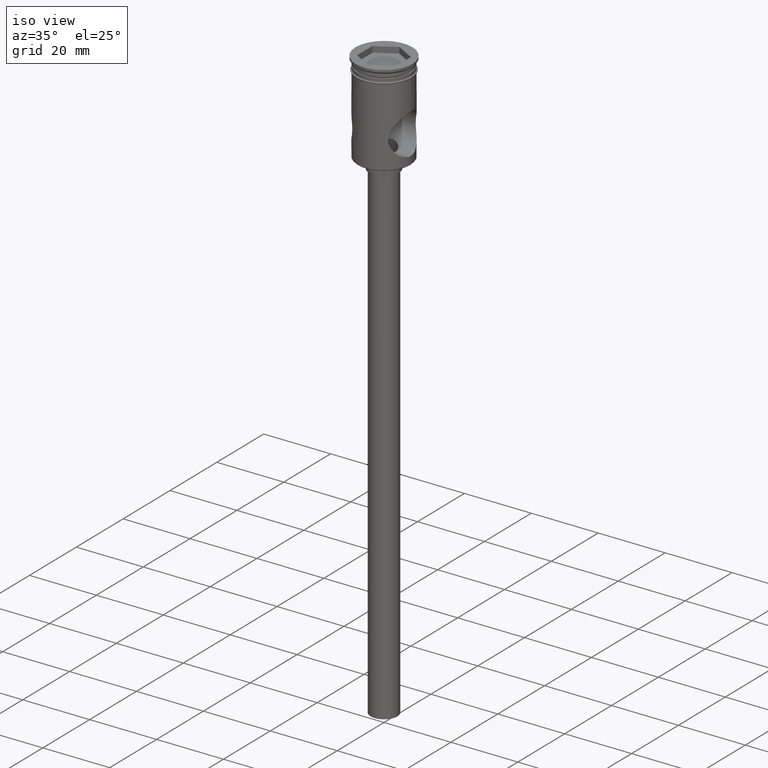
[diagram: clean part render]
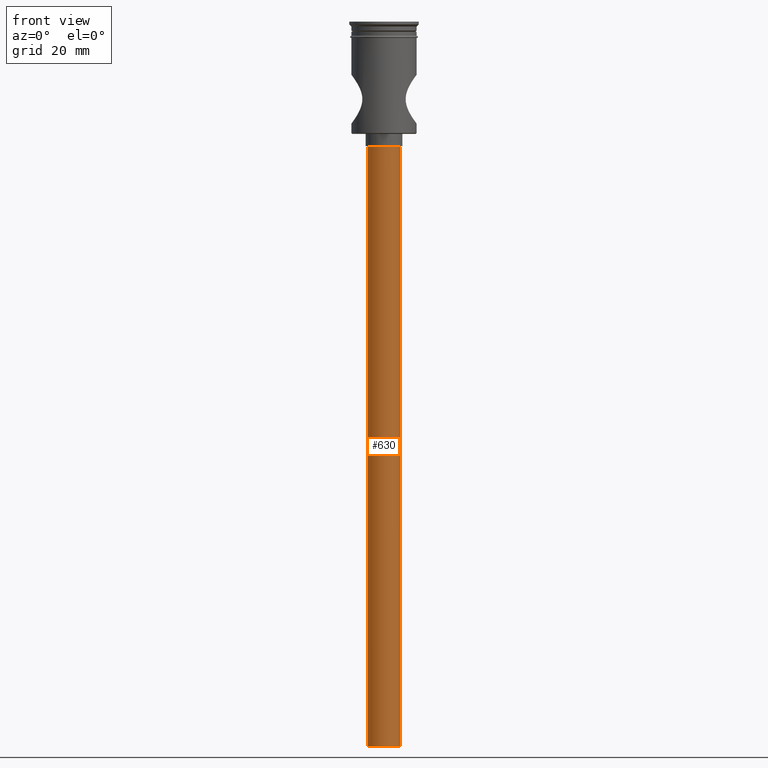
[diagram: tour spotlight — one face highlighted and labeled with its STEP entity id]
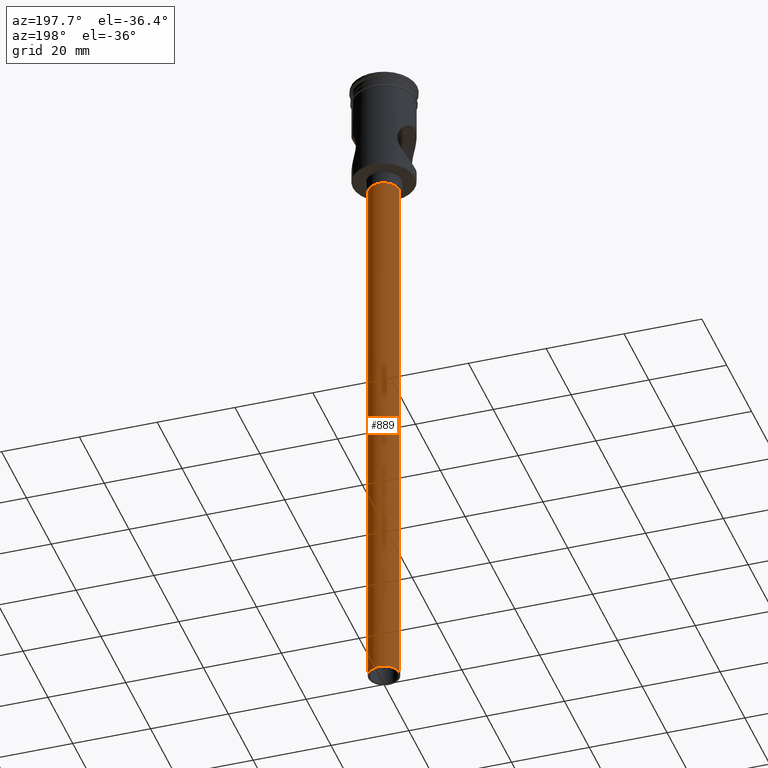
[diagram: tour spotlight — one face highlighted and labeled with its STEP entity id]
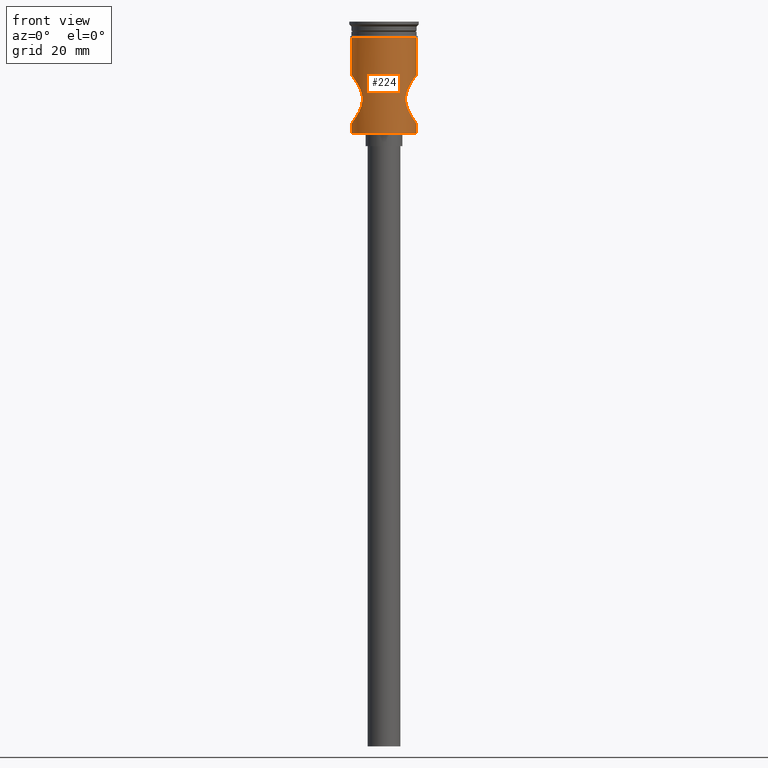
[diagram: tour spotlight — one face highlighted and labeled with its STEP entity id]
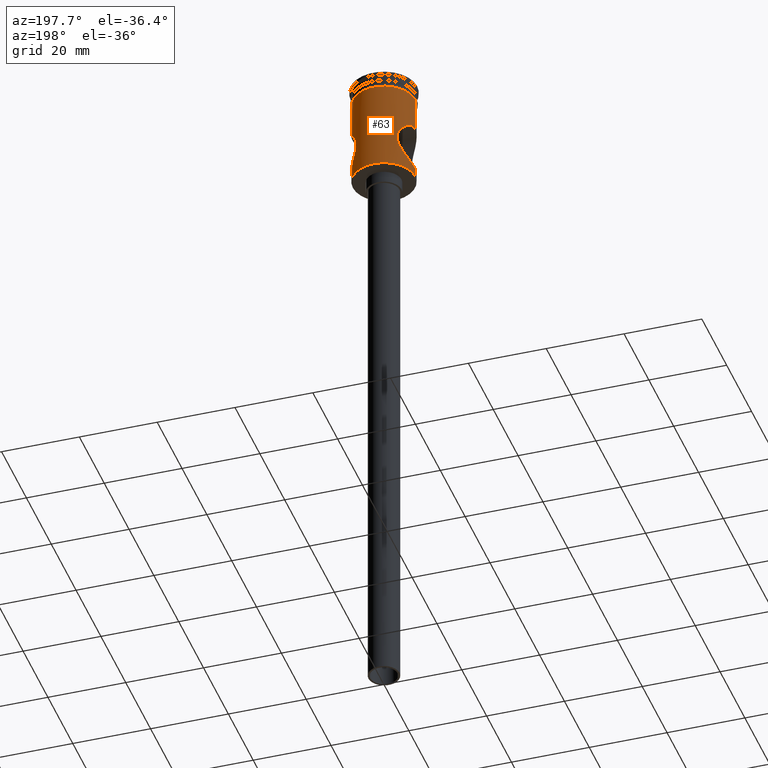
[diagram: tour spotlight — one face highlighted and labeled with its STEP entity id]
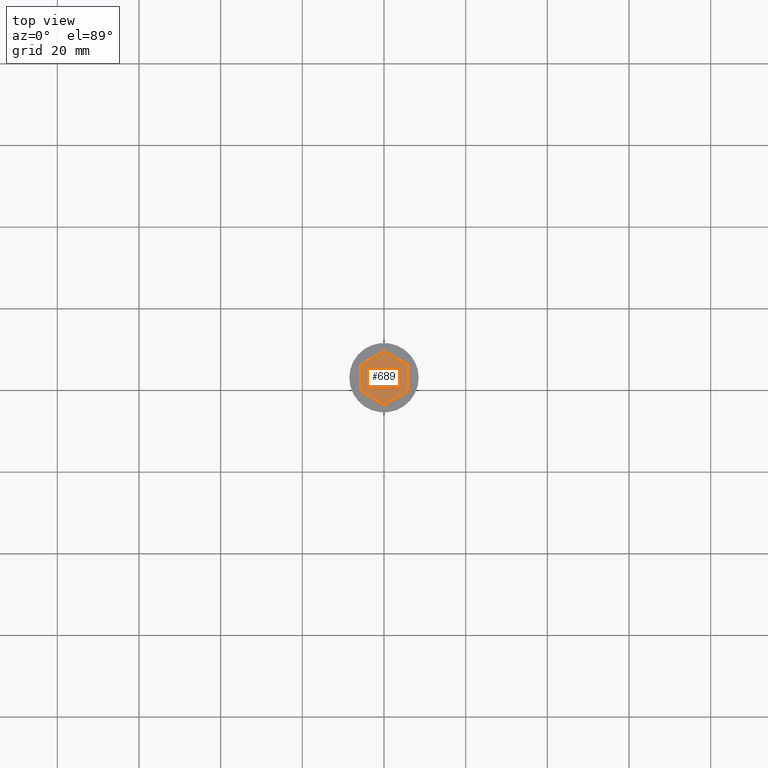
[diagram: tour spotlight — one face highlighted and labeled with its STEP entity id]
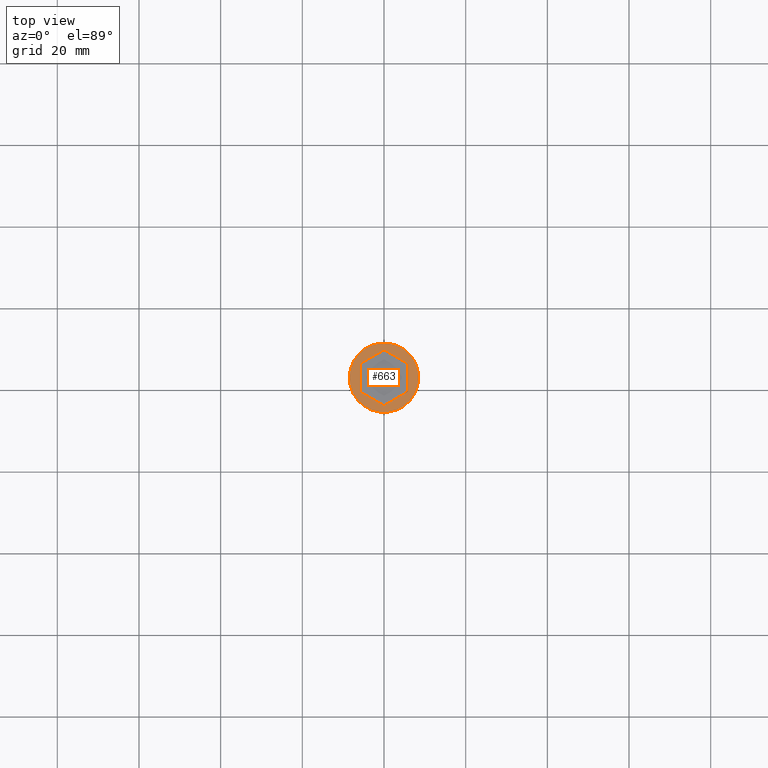
[diagram: tour spotlight — one face highlighted and labeled with its STEP entity id]
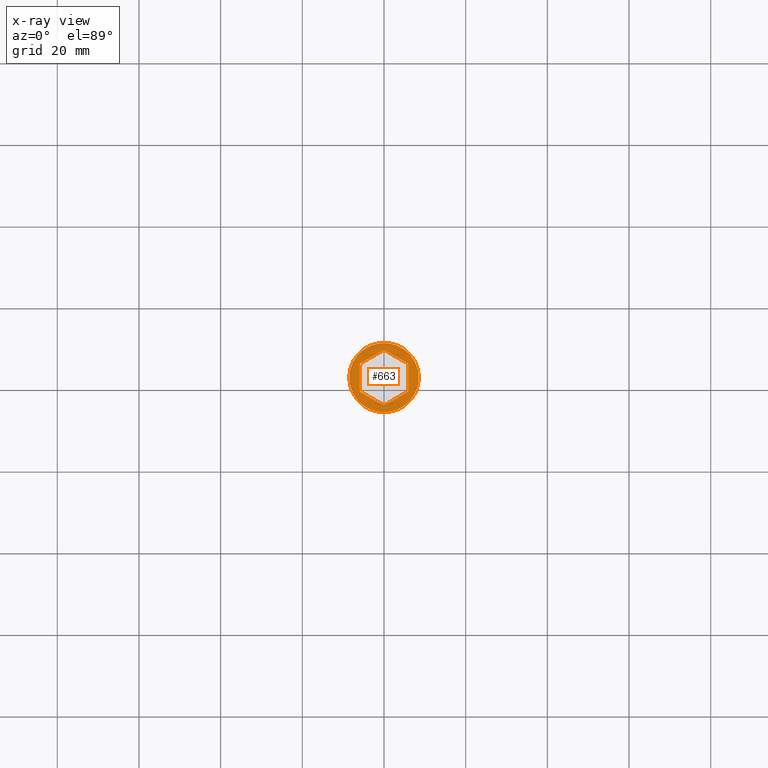
[diagram: x-ray of the same camera — body ghosted, this tour face saturated]
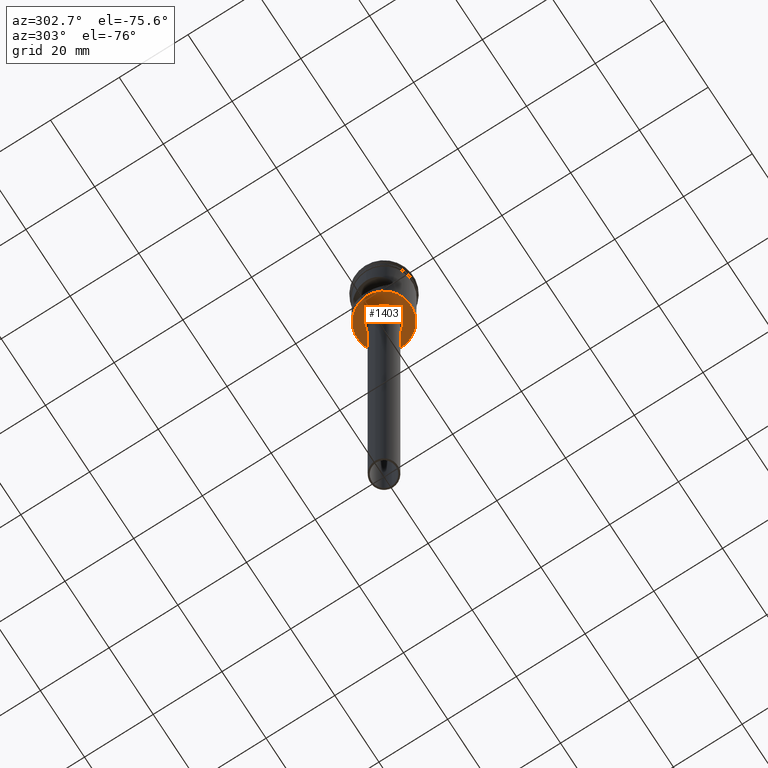
[diagram: tour spotlight — one face highlighted and labeled with its STEP entity id]
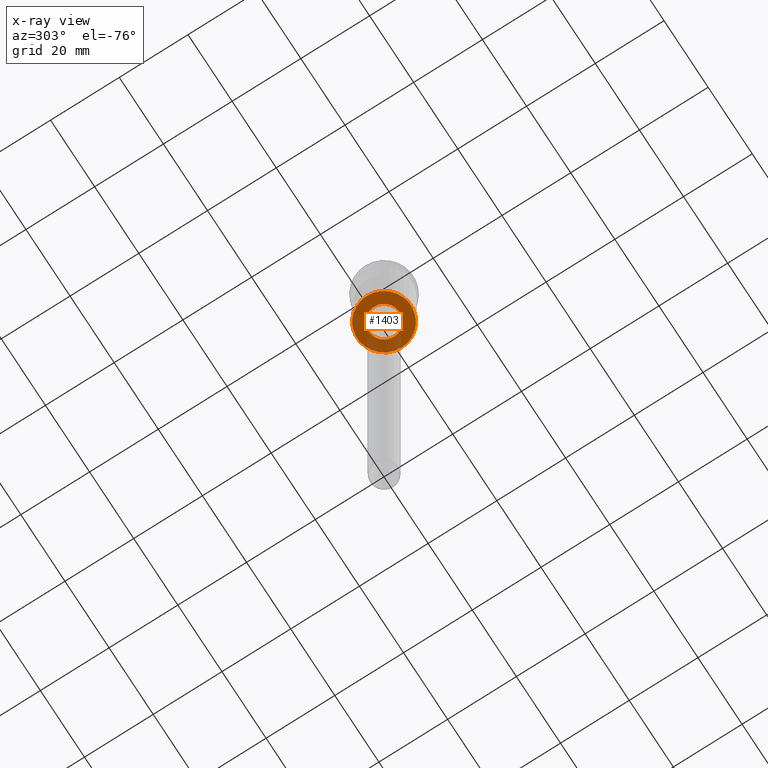
[diagram: x-ray of the same camera — body ghosted, this tour face saturated]
A machine part: a face-by-face anatomy tour. The part has 44 B-rep faces; the first image is the clean iso view, then the 7 largest visible faces are spotlighted one at a time (largest first), each with its STEP entity span.

Face 1 — front view, entity #630. In plain terms, the highlighted cylindrical surface (edge-blend (fillet) strip) has radius 4 mm, axis along (-0, -0, 1).
Definition (entity closure, byte-faithful):
#17 = EDGE_CURVE ( 'NONE', #335, #785, #364, .T. ) ;
#89 = CARTESIAN_POINT ( 'NONE',  ( -4.000000000000000000, 4.898587196589412829E-16, -30.50000000000000000 ) ) ;
#90 = EDGE_LOOP ( 'NONE', ( #229, #316, #837, #1395 ) ) ;
#132 = CIRCLE ( 'NONE', #334, 4.000000000000000000 ) ;
#162 = VERTEX_POINT ( 'NONE', #1072 ) ;
#229 = ORIENTED_EDGE ( 'NONE', *, *, #1243, .F. ) ;
#255 = CARTESIAN_POINT ( 'NONE',  ( 4.000000000000000000, 0.000000000000000000, -177.5000000000000000 ) ) ;
#258 = CARTESIAN_POINT ( 'NONE',  ( 0.000000000000000000, 0.000000000000000000, -177.5000000000000000 ) ) ;
#316 = ORIENTED_EDGE ( 'NONE', *, *, #844, .F. ) ;
#334 = AXIS2_PLACEMENT_3D ( 'NONE', #1218, #861, #373 ) ;
#335 = VERTEX_POINT ( 'NONE', #1202 ) ;
#364 = LINE ( 'NONE', #255, #1478 ) ;
#369 = DIRECTION ( 'NONE',  ( -0.000000000000000000, -0.000000000000000000, 1.000000000000000000 ) ) ;
#370 = CYLINDRICAL_SURFACE ( 'NONE', #613, 4.000000000000000000 ) ;
#373 = DIRECTION ( 'NONE',  ( -1.000000000000000000, 0.000000000000000000, 0.000000000000000000 ) ) ;
#581 = DIRECTION ( 'NONE',  ( -1.000000000000000000, 0.000000000000000000, 0.000000000000000000 ) ) ;
#613 = AXIS2_PLACEMENT_3D ( 'NONE', #958, #1396, #800 ) ;
#630 = ADVANCED_FACE ( 'NONE', ( #928 ), #370, .T. ) ;
#690 = CIRCLE ( 'NONE', #1143, 4.000000000000000000 ) ;
#785 = VERTEX_POINT ( 'NONE', #963 ) ;
#800 = DIRECTION ( 'NONE',  ( 1.000000000000000000, 0.000000000000000000, 0.000000000000000000 ) ) ;
#837 = ORIENTED_EDGE ( 'NONE', *, *, #17, .T. ) ;
#844 = EDGE_CURVE ( 'NONE', #335, #162, #690, .T. ) ;
#861 = DIRECTION ( 'NONE',  ( 0.000000000000000000, 0.000000000000000000, -1.000000000000000000 ) ) ;
#891 = VECTOR ( 'NONE', #1066, 1000.000000000000000 ) ;
#923 = EDGE_CURVE ( 'NONE', #785, #1157, #132, .T. ) ;
#928 = FACE_OUTER_BOUND ( 'NONE', #90, .T. ) ;
#958 = CARTESIAN_POINT ( 'NONE',  ( 0.000000000000000000, 0.000000000000000000, -177.5000000000000000 ) ) ;
#963 = CARTESIAN_POINT ( 'NONE',  ( 4.000000000000000000, 0.000000000000000000, -30.50000000000000000 ) ) ;
#1066 = DIRECTION ( 'NONE',  ( -0.000000000000000000, -0.000000000000000000, 1.000000000000000000 ) ) ;
#1072 = CARTESIAN_POINT ( 'NONE',  ( -4.000000000000000000, 4.898587196589412829E-16, -177.5000000000000000 ) ) ;
#1143 = AXIS2_PLACEMENT_3D ( 'NONE', #258, #1516, #581 ) ;
#1157 = VERTEX_POINT ( 'NONE', #89 ) ;
#1202 = CARTESIAN_POINT ( 'NONE',  ( 4.000000000000000000, 0.000000000000000000, -177.5000000000000000 ) ) ;
#1218 = CARTESIAN_POINT ( 'NONE',  ( 0.000000000000000000, 0.000000000000000000, -30.50000000000000000 ) ) ;
#1243 = EDGE_CURVE ( 'NONE', #162, #1157, #1424, .T. ) ;
#1395 = ORIENTED_EDGE ( 'NONE', *, *, #923, .T. ) ;
#1396 = DIRECTION ( 'NONE',  ( -0.000000000000000000, -0.000000000000000000, 1.000000000000000000 ) ) ;
#1405 = CARTESIAN_POINT ( 'NONE',  ( -4.000000000000000000, 4.898587196589412829E-16, -177.5000000000000000 ) ) ;
#1424 = LINE ( 'NONE', #1405, #891 ) ;
#1478 = VECTOR ( 'NONE', #369, 1000.000000000000000 ) ;
#1516 = DIRECTION ( 'NONE',  ( 0.000000000000000000, 0.000000000000000000, -1.000000000000000000 ) ) ;

Face 2 — auxiliary view, entity #889. In plain terms, the highlighted cylindrical surface (edge-blend (fillet) strip) has radius 4 mm, axis along (-0, -0, 1).
Definition (entity closure, byte-faithful):
#17 = EDGE_CURVE ( 'NONE', #335, #785, #364, .T. ) ;
#89 = CARTESIAN_POINT ( 'NONE',  ( -4.000000000000000000, 4.898587196589412829E-16, -30.50000000000000000 ) ) ;
#162 = VERTEX_POINT ( 'NONE', #1072 ) ;
#213 = AXIS2_PLACEMENT_3D ( 'NONE', #815, #719, #1175 ) ;
#255 = CARTESIAN_POINT ( 'NONE',  ( 4.000000000000000000, 0.000000000000000000, -177.5000000000000000 ) ) ;
#335 = VERTEX_POINT ( 'NONE', #1202 ) ;
#344 = ORIENTED_EDGE ( 'NONE', *, *, #1041, .T. ) ;
#364 = LINE ( 'NONE', #255, #1478 ) ;
#369 = DIRECTION ( 'NONE',  ( -0.000000000000000000, -0.000000000000000000, 1.000000000000000000 ) ) ;
#372 = CYLINDRICAL_SURFACE ( 'NONE', #213, 4.000000000000000000 ) ;
#388 = EDGE_LOOP ( 'NONE', ( #778, #1167, #344, #1221 ) ) ;
#559 = DIRECTION ( 'NONE',  ( -1.000000000000000000, 0.000000000000000000, 0.000000000000000000 ) ) ;
#585 = CARTESIAN_POINT ( 'NONE',  ( 0.000000000000000000, 0.000000000000000000, -177.5000000000000000 ) ) ;
#719 = DIRECTION ( 'NONE',  ( -0.000000000000000000, -0.000000000000000000, 1.000000000000000000 ) ) ;
#778 = ORIENTED_EDGE ( 'NONE', *, *, #1496, .F. ) ;
#785 = VERTEX_POINT ( 'NONE', #963 ) ;
#815 = CARTESIAN_POINT ( 'NONE',  ( 0.000000000000000000, 0.000000000000000000, -177.5000000000000000 ) ) ;
#889 = ADVANCED_FACE ( 'NONE', ( #1061 ), #372, .T. ) ;
#891 = VECTOR ( 'NONE', #1066, 1000.000000000000000 ) ;
#898 = DIRECTION ( 'NONE',  ( -1.000000000000000000, 0.000000000000000000, 0.000000000000000000 ) ) ;
#949 = AXIS2_PLACEMENT_3D ( 'NONE', #585, #1012, #898 ) ;
#963 = CARTESIAN_POINT ( 'NONE',  ( 4.000000000000000000, 0.000000000000000000, -30.50000000000000000 ) ) ;
#973 = CIRCLE ( 'NONE', #949, 4.000000000000000000 ) ;
#1012 = DIRECTION ( 'NONE',  ( 0.000000000000000000, 0.000000000000000000, -1.000000000000000000 ) ) ;
#1041 = EDGE_CURVE ( 'NONE', #1157, #785, #1144, .T. ) ;
#1050 = AXIS2_PLACEMENT_3D ( 'NONE', #1495, #1165, #559 ) ;
#1061 = FACE_OUTER_BOUND ( 'NONE', #388, .T. ) ;
#1066 = DIRECTION ( 'NONE',  ( -0.000000000000000000, -0.000000000000000000, 1.000000000000000000 ) ) ;
#1072 = CARTESIAN_POINT ( 'NONE',  ( -4.000000000000000000, 4.898587196589412829E-16, -177.5000000000000000 ) ) ;
#1144 = CIRCLE ( 'NONE', #1050, 4.000000000000000000 ) ;
#1157 = VERTEX_POINT ( 'NONE', #89 ) ;
#1165 = DIRECTION ( 'NONE',  ( 0.000000000000000000, 0.000000000000000000, -1.000000000000000000 ) ) ;
#1167 = ORIENTED_EDGE ( 'NONE', *, *, #1243, .T. ) ;
#1175 = DIRECTION ( 'NONE',  ( 1.000000000000000000, 0.000000000000000000, 0.000000000000000000 ) ) ;
#1202 = CARTESIAN_POINT ( 'NONE',  ( 4.000000000000000000, 0.000000000000000000, -177.5000000000000000 ) ) ;
#1221 = ORIENTED_EDGE ( 'NONE', *, *, #17, .F. ) ;
#1243 = EDGE_CURVE ( 'NONE', #162, #1157, #1424, .T. ) ;
#1405 = CARTESIAN_POINT ( 'NONE',  ( -4.000000000000000000, 4.898587196589412829E-16, -177.5000000000000000 ) ) ;
#1424 = LINE ( 'NONE', #1405, #891 ) ;
#1478 = VECTOR ( 'NONE', #369, 1000.000000000000000 ) ;
#1495 = CARTESIAN_POINT ( 'NONE',  ( 0.000000000000000000, 0.000000000000000000, -30.50000000000000000 ) ) ;
#1496 = EDGE_CURVE ( 'NONE', #162, #335, #973, .T. ) ;

Face 3 — front view, entity #224. In plain terms, the highlighted cylindrical surface (edge-blend (fillet) strip) has radius 8 mm, axis along (-0, -0, 1).
Definition (entity closure, byte-faithful):
#1 = CARTESIAN_POINT ( 'NONE',  ( -5.717260744181802856, -5.596776624407739931, -16.82891779856495518 ) ) ;
#12 = CARTESIAN_POINT ( 'NONE',  ( 7.999999999999996447, 0.000000000000000000, 0.000000000000000000 ) ) ;
#14 = CARTESIAN_POINT ( 'NONE',  ( -7.875627092851999578, -1.419784017982114177, -13.16679506876979211 ) ) ;
#15 = CARTESIAN_POINT ( 'NONE',  ( 0.000000000000000000, 0.000000000000000000, -27.30000000000000426 ) ) ;
#19 = CARTESIAN_POINT ( 'NONE',  ( 7.991997215772789431, -0.4127757007396756772, -13.01065792661720621 ) ) ;
#20 = CARTESIAN_POINT ( 'NONE',  ( -7.748219018226240706, -2.000946089715706311, -13.33991246093565408 ) ) ;
#25 = CARTESIAN_POINT ( 'NONE',  ( 7.936580320267932365, -1.025211991777380316, -13.08475919831038503 ) ) ;
#37 = CARTESIAN_POINT ( 'NONE',  ( -7.584438918382732098, -2.551936178765120911, -24.43384157505064991 ) ) ;
#48 = CARTESIAN_POINT ( 'NONE',  ( 7.837238599853708187, -1.617585761159319846, -13.21864966473142644 ) ) ;
#53 = CARTESIAN_POINT ( 'NONE',  ( 6.426120009460146498, -4.772495035090829951, -15.34422494722665498 ) ) ;
#68 = EDGE_CURVE ( 'NONE', #737, #1123, #294, .T. ) ;
#73 = DIRECTION ( 'NONE',  ( -0.000000000000000000, -0.000000000000000000, 1.000000000000000000 ) ) ;
#100 = CARTESIAN_POINT ( 'NONE',  ( 7.999999999999998224, -0.2076584939606448688, -25.00000000000000711 ) ) ;
#118 = VECTOR ( 'NONE', #73, 1000.000000000000000 ) ;
#127 = CARTESIAN_POINT ( 'NONE',  ( -7.697512327894634687, -2.187332674909134411, -13.40941737064048489 ) ) ;
#131 = AXIS2_PLACEMENT_3D ( 'NONE', #932, #449, #204 ) ;
#144 = CARTESIAN_POINT ( 'NONE',  ( 8.000000000000003553, -0.2050786897151755939, -12.99999999999999467 ) ) ;
#148 = B_SPLINE_CURVE_WITH_KNOTS ( 'NONE', 3,
 ( #1391, #1346, #736, #882, #865, #37, #626, #759, #504, #1047, #1509, #455, #1398, #424, #202, #1025, #1034, #1304, #486, #584, #838, #576, #176, #354, #1425, #582, #1173, #707, #1, #807, #814, #485, #246, #588, #1299, #1079, #467, #127, #20, #1067, #14, #1411, #260, #360 ),
 .UNSPECIFIED., .F., .F.,
 ( 4, 2, 2, 2, 2, 2, 2, 2, 2, 2, 2, 2, 2, 2, 2, 2, 2, 2, 2, 2, 2, 4 ),
 ( 0.000000000000000000, 0.001228223836357230292, 0.002456447672714460583, 0.003070559590893076705, 0.003684671509071692826, 0.004912895345428925503, 0.006141119181786157746, 0.007369343018143389989, 0.007983454936322012183, 0.008597566854500634376, 0.009825790690857877027, 0.01043990260903650269, 0.01105401452721512835, 0.01166812644539375401, 0.01228223836357237968, 0.01351046219992964315, 0.01473868603628690661, 0.01596690987264417008, 0.01719513370900143182, 0.01780924562718006268, 0.01842335754535869355, 0.01965158138171595875 ),
 .UNSPECIFIED. ) ;
#150 = CARTESIAN_POINT ( 'NONE',  ( 7.999999999999996447, 0.000000000000000000, -27.30000000000000426 ) ) ;
#156 = CARTESIAN_POINT ( 'NONE',  ( 6.178944471944527450, -5.083158423289842354, -22.19321469611283604 ) ) ;
#176 = CARTESIAN_POINT ( 'NONE',  ( -5.303431297491206564, -5.989541423528397246, -18.59082079987659597 ) ) ;
#177 = ORIENTED_EDGE ( 'NONE', *, *, #1487, .F. ) ;
#182 = CARTESIAN_POINT ( 'NONE',  ( 7.748015674478846648, -2.001785621332208720, -13.34018995724740897 ) ) ;
#202 = CARTESIAN_POINT ( 'NONE',  ( -5.933514355146049191, -5.370016379611007196, -21.70410386792428170 ) ) ;
#204 = DIRECTION ( 'NONE',  ( 1.000000000000000000, 0.000000000000000000, 0.000000000000000000 ) ) ;
#206 = CARTESIAN_POINT ( 'NONE',  ( 5.291471813663452650, -6.000027170513402730, -18.79430872448704903 ) ) ;
#222 = CARTESIAN_POINT ( 'NONE',  ( 7.390764062597867223, -3.081727328898058893, -24.16219223809559935 ) ) ;
#224 = ADVANCED_FACE ( 'NONE', ( #692 ), #578, .T. ) ;
#226 = ORIENTED_EDGE ( 'NONE', *, *, #68, .F. ) ;
#246 = CARTESIAN_POINT ( 'NONE',  ( -6.602014270987718092, -4.528930003495661438, -15.04648686704186211 ) ) ;
#254 = AXIS2_PLACEMENT_3D ( 'NONE', #15, #1412, #1204 ) ;
#260 = CARTESIAN_POINT ( 'NONE',  ( -8.000000000000005329, -0.4110175701281973404, -12.99999999999999822 ) ) ;
#263 = CARTESIAN_POINT ( 'NONE',  ( 7.999999999999996447, 0.000000000000000000, -25.00000000000000000 ) ) ;
#264 = CARTESIAN_POINT ( 'NONE',  ( 5.519437917285259232, -5.792285672141820996, -20.61683396324643880 ) ) ;
#268 = CARTESIAN_POINT ( 'NONE',  ( 7.999999999999996447, 3.674711311745778243E-24, -13.00000000000000533 ) ) ;
#285 = EDGE_CURVE ( 'NONE', #703, #737, #148, .T. ) ;
#288 = CARTESIAN_POINT ( 'NONE',  ( 7.875112291323482339, -1.422312626392035151, -13.16749109191734313 ) ) ;
#290 = CARTESIAN_POINT ( 'NONE',  ( 7.835858405065168064, -1.624274161447293752, -24.77948060674688691 ) ) ;
#294 = LINE ( 'NONE', #1107, #1382 ) ;
#296 = CARTESIAN_POINT ( 'NONE',  ( 7.873944427309547578, -1.428810887794780715, -24.83093286763472562 ) ) ;
#300 = CARTESIAN_POINT ( 'NONE',  ( 7.526744538711455768, -2.737435864263672691, -13.64615235571890395 ) ) ;
#306 = VECTOR ( 'NONE', #862, 1000.000000000000000 ) ;
#309 = CARTESIAN_POINT ( 'NONE',  ( 5.650483228049788309, -5.663857365279293177, -17.01003722717181788 ) ) ;
#338 = CARTESIAN_POINT ( 'NONE',  ( -7.999999999999996447, 9.797174393178821713E-16, 0.000000000000000000 ) ) ;
#342 = VERTEX_POINT ( 'NONE', #1001 ) ;
#354 = CARTESIAN_POINT ( 'NONE',  ( -5.350380422783078238, -5.947639811124360243, -18.18292303966837054 ) ) ;
#360 = CARTESIAN_POINT ( 'NONE',  ( -7.999999999999996447, 9.797174356432676922E-16, -13.00000000000000533 ) ) ;
#376 = EDGE_CURVE ( 'NONE', #1123, #342, #1091, .T. ) ;
#390 = CARTESIAN_POINT ( 'NONE',  ( 6.598787025335901113, -4.533655066149034241, -22.94815787054485412 ) ) ;
#424 = CARTESIAN_POINT ( 'NONE',  ( -6.094205644570489966, -5.189600670481773648, -22.03454661334870579 ) ) ;
#449 = DIRECTION ( 'NONE',  ( -0.000000000000000000, -0.000000000000000000, 1.000000000000000000 ) ) ;
#450 = CIRCLE ( 'NONE', #254, 7.999999999999996447 ) ;
#455 = CARTESIAN_POINT ( 'NONE',  ( -6.600129246405440853, -4.531693863514760778, -22.95038707538192924 ) ) ;
#458 = EDGE_CURVE ( 'NONE', #537, #914, #450, .T. ) ;
#464 = DIRECTION ( 'NONE',  ( 1.000000000000000000, 0.000000000000000000, 0.000000000000000000 ) ) ;
#467 = CARTESIAN_POINT ( 'NONE',  ( -7.528683465599921298, -2.731923562265711869, -13.64343887222186957 ) ) ;
#485 = CARTESIAN_POINT ( 'NONE',  ( -6.428305707969261817, -4.769535948342529252, -15.34044057477573908 ) ) ;
#486 = CARTESIAN_POINT ( 'NONE',  ( -5.474514516413028886, -5.833807645266261943, -20.41669993575522923 ) ) ;
#501 = CARTESIAN_POINT ( 'NONE',  ( 7.960178332295267722, -0.8233858112076420932, -13.05318252701359505 ) ) ;
#504 = CARTESIAN_POINT ( 'NONE',  ( -7.318622431870950962, -3.235523761949522292, -24.05653912422262408 ) ) ;
#507 = CARTESIAN_POINT ( 'NONE',  ( 7.092607887154920299, -3.704399776580873382, -23.72372303530257298 ) ) ;
#521 = AXIS2_PLACEMENT_3D ( 'NONE', #1058, #1518, #464 ) ;
#522 = CARTESIAN_POINT ( 'NONE',  ( 6.092548161367391302, -5.191587824295141651, -15.96869401757641427 ) ) ;
#533 = CARTESIAN_POINT ( 'NONE',  ( -7.999999999999996447, 0.000000000000000000, -25.00000000000000000 ) ) ;
#537 = VERTEX_POINT ( 'NONE', #1456 ) ;
#546 = CARTESIAN_POINT ( 'NONE',  ( 5.351298131410347381, -5.946815791029208320, -18.17692857331259404 ) ) ;
#566 = ORIENTED_EDGE ( 'NONE', *, *, #739, .T. ) ;
#576 = CARTESIAN_POINT ( 'NONE',  ( -5.291499639625486751, -6.000002630321014330, -18.79521987294451080 ) ) ;
#578 = CYLINDRICAL_SURFACE ( 'NONE', #521, 7.999999999999996447 ) ;
#582 = CARTESIAN_POINT ( 'NONE',  ( -5.474412988877311648, -5.833905236971782315, -17.58356884929880692 ) ) ;
#584 = CARTESIAN_POINT ( 'NONE',  ( -5.341952933818356009, -5.956343020881683437, -19.82666753736794618 ) ) ;
#588 = CARTESIAN_POINT ( 'NONE',  ( -6.935409427810202310, -3.999736926290282657, -14.51184028921589508 ) ) ;
#597 = CARTESIAN_POINT ( 'NONE',  ( 5.340955530264041684, -5.957261304845339112, -19.82204812401647231 ) ) ;
#626 = CARTESIAN_POINT ( 'NONE',  ( -7.522790365168886773, -2.727851025529602236, -24.34760159016908077 ) ) ;
#652 = CARTESIAN_POINT ( 'NONE',  ( 5.474655730134189824, -5.833676180865436045, -17.58271699258815346 ) ) ;
#692 = FACE_OUTER_BOUND ( 'NONE', #1498, .T. ) ;
#703 = VERTEX_POINT ( 'NONE', #533 ) ;
#707 = CARTESIAN_POINT ( 'NONE',  ( -5.649101405964834122, -5.665229783906034378, -17.01400357395085550 ) ) ;
#715 = DIRECTION ( 'NONE',  ( -0.000000000000000000, -0.000000000000000000, 1.000000000000000000 ) ) ;
#732 = CARTESIAN_POINT ( 'NONE',  ( 6.599412474671013662, -4.532668071879426108, -15.05083651367930564 ) ) ;
#736 = CARTESIAN_POINT ( 'NONE',  ( -7.967750386662301842, -0.8225813075346136705, -24.95718867133072649 ) ) ;
#737 = VERTEX_POINT ( 'NONE', #841 ) ;
#739 = EDGE_CURVE ( 'NONE', #914, #984, #1322, .T. ) ;
#740 = CARTESIAN_POINT ( 'NONE',  ( 6.932510933914957540, -3.995992554649491435, -23.47975228357175581 ) ) ;
#757 = EDGE_CURVE ( 'NONE', #812, #342, #957, .T. ) ;
#759 = CARTESIAN_POINT ( 'NONE',  ( -7.390068150002869096, -3.069273339745733242, -24.15922233971243926 ) ) ;
#762 = CARTESIAN_POINT ( 'NONE',  ( 7.392840448243053864, -3.077268624920921347, -13.83477139314359050 ) ) ;
#781 = CARTESIAN_POINT ( 'NONE',  ( 5.303887827319023529, -5.989138807782577345, -18.58493257538529875 ) ) ;
#801 = CARTESIAN_POINT ( 'NONE',  ( -8.000000000000000000, 9.797174393178825657E-16, -3.999999999999997335 ) ) ;
#807 = CARTESIAN_POINT ( 'NONE',  ( -5.934194063793427176, -5.369288296893337531, -16.29430799600839208 ) ) ;
#812 = VERTEX_POINT ( 'NONE', #268 ) ;
#814 = CARTESIAN_POINT ( 'NONE',  ( -6.095265202635743229, -5.188384097884396695, -15.96330462474424294 ) ) ;
#838 = CARTESIAN_POINT ( 'NONE',  ( -5.291508588819593406, -5.999994737873667106, -19.40979141361455618 ) ) ;
#840 = CARTESIAN_POINT ( 'NONE',  ( 5.937193840094633579, -5.363245192895815805, -21.69666719771004537 ) ) ;
#841 = CARTESIAN_POINT ( 'NONE',  ( -7.999999999999996447, 9.797174356432676922E-16, -13.00000000000000533 ) ) ;
#862 = DIRECTION ( 'NONE',  ( -0.000000000000000000, -0.000000000000000000, 1.000000000000000000 ) ) ;
#865 = CARTESIAN_POINT ( 'NONE',  ( -7.753317466694377380, -2.007594612796119282, -24.66794618566808239 ) ) ;
#868 = EDGE_CURVE ( 'NONE', #812, #984, #1212, .T. ) ;
#872 = CARTESIAN_POINT ( 'NONE',  ( 7.696444758544893183, -2.191140728972406304, -13.41088448561661295 ) ) ;
#879 = CARTESIAN_POINT ( 'NONE',  ( 7.959626168830806314, -0.8288481689406960173, -24.94607871179749736 ) ) ;
#882 = CARTESIAN_POINT ( 'NONE',  ( -7.845111153738293375, -1.617379738080571894, -24.79213429196722984 ) ) ;
#895 = CARTESIAN_POINT ( 'NONE',  ( 5.717670742267799255, -5.596336919971242274, -16.82796284348983917 ) ) ;
#900 = CARTESIAN_POINT ( 'NONE',  ( 7.524109323248029391, -2.744670825570128425, -24.35015039146814075 ) ) ;
#912 = ORIENTED_EDGE ( 'NONE', *, *, #757, .T. ) ;
#914 = VERTEX_POINT ( 'NONE', #150 ) ;
#932 = CARTESIAN_POINT ( 'NONE',  ( 0.000000000000000000, 0.000000000000000000, -3.999999999999997335 ) ) ;
#956 = CARTESIAN_POINT ( 'NONE',  ( 6.932348065000019766, -4.004981294134715597, -14.51657531287132841 ) ) ;
#957 = LINE ( 'NONE', #1192, #306 ) ;
#968 = VECTOR ( 'NONE', #715, 1000.000000000000000 ) ;
#969 = CARTESIAN_POINT ( 'NONE',  ( 5.643916026891301563, -5.673596022587065413, -20.98979656833889607 ) ) ;
#978 = CARTESIAN_POINT ( 'NONE',  ( 6.428408221799561062, -4.769379950103073362, -22.65971221525528634 ) ) ;
#984 = VERTEX_POINT ( 'NONE', #263 ) ;
#988 = CARTESIAN_POINT ( 'NONE',  ( 7.746242821178788596, -2.008647717025523693, -24.65738428818450245 ) ) ;
#1000 = CARTESIAN_POINT ( 'NONE',  ( 5.528728542356218689, -5.782767647903217068, -17.38791116192859221 ) ) ;
#1001 = CARTESIAN_POINT ( 'NONE',  ( 8.000000000000000000, 0.000000000000000000, -3.999999999999997335 ) ) ;
#1013 = CARTESIAN_POINT ( 'NONE',  ( 7.991786201921674326, -0.4171226887462311517, -24.98906086098486767 ) ) ;
#1023 = ORIENTED_EDGE ( 'NONE', *, *, #458, .T. ) ;
#1025 = CARTESIAN_POINT ( 'NONE',  ( -5.717181671610946481, -5.596851870810901630, -21.17084374095739108 ) ) ;
#1034 = CARTESIAN_POINT ( 'NONE',  ( -5.648998666191806350, -5.665331633315696891, -20.98569890523691583 ) ) ;
#1042 = CARTESIAN_POINT ( 'NONE',  ( 7.999999999999996447, 0.000000000000000000, -25.00000000000000000 ) ) ;
#1047 = CARTESIAN_POINT ( 'NONE',  ( -7.095043372362063394, -3.712647680833708552, -23.72917063698660911 ) ) ;
#1057 = CARTESIAN_POINT ( 'NONE',  ( 7.169789722930491216, -3.553058473854126653, -23.83860449815401594 ) ) ;
#1058 = CARTESIAN_POINT ( 'NONE',  ( 0.000000000000000000, 0.000000000000000000, 0.000000000000000000 ) ) ;
#1067 = CARTESIAN_POINT ( 'NONE',  ( -7.837185563733802596, -1.617777997116382815, -13.21872241145037563 ) ) ;
#1079 = CARTESIAN_POINT ( 'NONE',  ( -7.392183792285976551, -3.078563709593461262, -13.83574790663121235 ) ) ;
#1087 = CARTESIAN_POINT ( 'NONE',  ( 5.859839614964075238, -5.447306643968808260, -21.52271597277528059 ) ) ;
#1091 = CIRCLE ( 'NONE', #131, 8.000000000000000000 ) ;
#1107 = CARTESIAN_POINT ( 'NONE',  ( -7.999999999999996447, 9.797174393178821713E-16, 0.000000000000000000 ) ) ;
#1123 = VERTEX_POINT ( 'NONE', #801 ) ;
#1124 = ORIENTED_EDGE ( 'NONE', *, *, #376, .F. ) ;
#1127 = CARTESIAN_POINT ( 'NONE',  ( 5.932300773519818549, -5.371293148560218000, -16.29886334358921474 ) ) ;
#1131 = CARTESIAN_POINT ( 'NONE',  ( 5.386132118162889171, -5.915506229595404619, -17.97664524532638808 ) ) ;
#1135 = LINE ( 'NONE', #338, #118 ) ;
#1140 = CARTESIAN_POINT ( 'NONE',  ( 5.291564416442853691, -5.999945502536777830, -19.41375567364516996 ) ) ;
#1173 = CARTESIAN_POINT ( 'NONE',  ( -5.527877811876815706, -5.783575200193207699, -17.39087967744914920 ) ) ;
#1192 = CARTESIAN_POINT ( 'NONE',  ( 7.999999999999996447, 0.000000000000000000, 0.000000000000000000 ) ) ;
#1199 = DIRECTION ( 'NONE',  ( -0.000000000000000000, -0.000000000000000000, 1.000000000000000000 ) ) ;
#1204 = DIRECTION ( 'NONE',  ( -1.000000000000000000, 0.000000000000000000, 0.000000000000000000 ) ) ;
#1212 = B_SPLINE_CURVE_WITH_KNOTS ( 'NONE', 3,
 ( #1406, #144, #19, #501, #25, #288, #48, #182, #872, #300, #762, #1238, #956, #732, #53, #522, #1127, #895, #309, #1000, #652, #1131, #546, #781, #206, #1140, #597, #264, #969, #1087, #840, #1311, #156, #978, #390, #1319, #740, #507, #1057, #222, #900, #1364, #988, #290, #296, #1466, #879, #1013, #100, #1042 ),
 .UNSPECIFIED., .F., .F.,
 ( 4, 2, 2, 2, 2, 2, 2, 2, 2, 2, 2, 2, 2, 2, 2, 2, 2, 2, 2, 2, 2, 2, 2, 2, 4 ),
 ( 0.01965158138171595528, 0.02026440806685870719, 0.02087723475200145562, 0.02149006143714420752, 0.02210288812228695596, 0.02332854149257245630, 0.02455419486285795663, 0.02577984823314345697, 0.02700550160342896078, 0.02761832828857171268, 0.02823115497371446805, 0.02884398165885722343, 0.02945680834399997880, 0.03068246171428548608, 0.03190811508457100376, 0.03252094176971375566, 0.03313376845485650757, 0.03435942182514201831, 0.03497224851028477716, 0.03558507519542753600, 0.03681072856571306062, 0.03742355525085581947, 0.03803638193599857831, 0.03864920862114134409, 0.03926203530628410293 ),
 .UNSPECIFIED. ) ;
#1238 = CARTESIAN_POINT ( 'NONE',  ( 7.094299755750173020, -3.714105956844027112, -14.27193636968089585 ) ) ;
#1252 = ORIENTED_EDGE ( 'NONE', *, *, #868, .F. ) ;
#1299 = CARTESIAN_POINT ( 'NONE',  ( -7.095827365271403231, -3.710952672189014034, -14.26968452820924504 ) ) ;
#1304 = CARTESIAN_POINT ( 'NONE',  ( -5.527830583457349789, -5.783619756404974943, -20.60895157510371334 ) ) ;
#1311 = CARTESIAN_POINT ( 'NONE',  ( 6.096832542624035511, -5.181052271612230697, -22.03201423696313199 ) ) ;
#1319 = CARTESIAN_POINT ( 'NONE',  ( 6.849379830468326880, -4.136484081211208697, -23.35028667483850384 ) ) ;
#1322 = LINE ( 'NONE', #12, #968 ) ;
#1346 = CARTESIAN_POINT ( 'NONE',  ( -7.999999999999996447, -0.4161879994587697751, -25.00000000000000355 ) ) ;
#1359 = ORIENTED_EDGE ( 'NONE', *, *, #285, .F. ) ;
#1364 = CARTESIAN_POINT ( 'NONE',  ( 7.694334963991131815, -2.198537974230715175, -24.58621182590502485 ) ) ;
#1382 = VECTOR ( 'NONE', #1199, 1000.000000000000000 ) ;
#1391 = CARTESIAN_POINT ( 'NONE',  ( -7.999999999999996447, 0.000000000000000000, -25.00000000000000000 ) ) ;
#1398 = CARTESIAN_POINT ( 'NONE',  ( -6.426683704192724278, -4.771690908225657779, -22.65669169386859494 ) ) ;
#1406 = CARTESIAN_POINT ( 'NONE',  ( 7.999999999999996447, 3.674711311745778243E-24, -13.00000000000000533 ) ) ;
#1411 = CARTESIAN_POINT ( 'NONE',  ( -7.968510204580123713, -0.8173127755210322087, -13.04179007278579938 ) ) ;
#1412 = DIRECTION ( 'NONE',  ( -0.000000000000000000, -0.000000000000000000, 1.000000000000000000 ) ) ;
#1425 = CARTESIAN_POINT ( 'NONE',  ( -5.385705311345801327, -5.915896059439942789, -17.97877459268462275 ) ) ;
#1456 = CARTESIAN_POINT ( 'NONE',  ( -7.999999999999996447, 9.797174393178821713E-16, -27.30000000000000426 ) ) ;
#1466 = CARTESIAN_POINT ( 'NONE',  ( 7.935826362832942849, -1.031097151778474608, -24.91423007022370228 ) ) ;
#1487 = EDGE_CURVE ( 'NONE', #537, #703, #1135, .T. ) ;
#1498 = EDGE_LOOP ( 'NONE', ( #177, #1023, #566, #1252, #912, #1124, #226, #1359 ) ) ;
#1509 = CARTESIAN_POINT ( 'NONE',  ( -6.933994888437767123, -4.002208169122735804, -23.48599343389725291 ) ) ;
#1518 = DIRECTION ( 'NONE',  ( -0.000000000000000000, -0.000000000000000000, 1.000000000000000000 ) ) ;

Face 4 — auxiliary view, entity #63. In plain terms, the highlighted cylindrical surface (edge-blend (fillet) strip) has radius 8 mm, axis along (-0, -0, 1).
Definition (entity closure, byte-faithful):
#10 = CARTESIAN_POINT ( 'NONE',  ( -5.303887827319022641, 5.989138807782576457, -18.58493257538529875 ) ) ;
#12 = CARTESIAN_POINT ( 'NONE',  ( 7.999999999999996447, 0.000000000000000000, 0.000000000000000000 ) ) ;
#27 = CARTESIAN_POINT ( 'NONE',  ( -8.000000000000000000, 0.2076584939606447855, -25.00000000000001066 ) ) ;
#40 = CYLINDRICAL_SURFACE ( 'NONE', #612, 7.999999999999996447 ) ;
#42 = CARTESIAN_POINT ( 'NONE',  ( -5.351298131410346492, 5.946815791029208320, -18.17692857331259404 ) ) ;
#61 = CARTESIAN_POINT ( 'NONE',  ( -7.092607887154919410, 3.704399776580871606, -23.72372303530257298 ) ) ;
#62 = CARTESIAN_POINT ( 'NONE',  ( 8.000000000000005329, 0.4110175701281992278, -13.00000000000000000 ) ) ;
#63 = ADVANCED_FACE ( 'NONE', ( #629 ), #40, .T. ) ;
#68 = EDGE_CURVE ( 'NONE', #737, #1123, #294, .T. ) ;
#73 = DIRECTION ( 'NONE',  ( -0.000000000000000000, -0.000000000000000000, 1.000000000000000000 ) ) ;
#118 = VECTOR ( 'NONE', #73, 1000.000000000000000 ) ;
#128 = DIRECTION ( 'NONE',  ( -1.000000000000000000, 0.000000000000000000, 0.000000000000000000 ) ) ;
#150 = CARTESIAN_POINT ( 'NONE',  ( 7.999999999999996447, 0.000000000000000000, -27.30000000000000426 ) ) ;
#159 = CARTESIAN_POINT ( 'NONE',  ( -8.000000000000005329, 0.2050786897151790633, -13.00000000000000355 ) ) ;
#170 = CARTESIAN_POINT ( 'NONE',  ( 6.094205644570493519, 5.189600670481776312, -22.03454661334871290 ) ) ;
#188 = CARTESIAN_POINT ( 'NONE',  ( 5.933514355146050967, 5.370016379611009860, -21.70410386792428170 ) ) ;
#195 = CARTESIAN_POINT ( 'NONE',  ( 6.426683704192725166, 4.771690908225659555, -22.65669169386860204 ) ) ;
#205 = CARTESIAN_POINT ( 'NONE',  ( -7.392840448243055640, 3.077268624920922235, -13.83477139314359405 ) ) ;
#214 = ORIENTED_EDGE ( 'NONE', *, *, #799, .F. ) ;
#236 = AXIS2_PLACEMENT_3D ( 'NONE', #938, #952, #1291 ) ;
#240 = CARTESIAN_POINT ( 'NONE',  ( -6.599412474671010109, 4.532668071879429661, -15.05083651367930742 ) ) ;
#263 = CARTESIAN_POINT ( 'NONE',  ( 7.999999999999996447, 0.000000000000000000, -25.00000000000000000 ) ) ;
#265 = DIRECTION ( 'NONE',  ( -0.000000000000000000, -0.000000000000000000, 1.000000000000000000 ) ) ;
#268 = CARTESIAN_POINT ( 'NONE',  ( 7.999999999999996447, 3.674711311745778243E-24, -13.00000000000000533 ) ) ;
#269 = CARTESIAN_POINT ( 'NONE',  ( 0.000000000000000000, 0.000000000000000000, -27.30000000000000426 ) ) ;
#270 = CARTESIAN_POINT ( 'NONE',  ( -7.524109323248031167, 2.744670825570129757, -24.35015039146814786 ) ) ;
#283 = CARTESIAN_POINT ( 'NONE',  ( 5.385705311345802215, 5.915896059439944565, -17.97877459268462985 ) ) ;
#291 = CARTESIAN_POINT ( 'NONE',  ( -7.999999999999996447, 0.000000000000000000, -25.00000000000000000 ) ) ;
#294 = LINE ( 'NONE', #1107, #1382 ) ;
#299 = CARTESIAN_POINT ( 'NONE',  ( 5.291499639625487639, 6.000002630321015218, -18.79521987294451435 ) ) ;
#305 = CARTESIAN_POINT ( 'NONE',  ( -6.932510933914958429, 3.995992554649490547, -23.47975228357175581 ) ) ;
#306 = VECTOR ( 'NONE', #862, 1000.000000000000000 ) ;
#307 = CARTESIAN_POINT ( 'NONE',  ( -7.748015674478848425, 2.001785621332211385, -13.34018995724741607 ) ) ;
#318 = CARTESIAN_POINT ( 'NONE',  ( 5.291508588819593406, 5.999994737873667106, -19.40979141361455262 ) ) ;
#338 = CARTESIAN_POINT ( 'NONE',  ( -7.999999999999996447, 9.797174393178821713E-16, 0.000000000000000000 ) ) ;
#342 = VERTEX_POINT ( 'NONE', #1001 ) ;
#392 = CARTESIAN_POINT ( 'NONE',  ( -7.936580320267932365, 1.025211991777383647, -13.08475919831038858 ) ) ;
#397 = CARTESIAN_POINT ( 'NONE',  ( 6.428305707969257377, 4.769535948342530141, -15.34044057477574263 ) ) ;
#401 = CARTESIAN_POINT ( 'NONE',  ( -6.932348065000020654, 4.004981294134720926, -14.51657531287133551 ) ) ;
#418 = CARTESIAN_POINT ( 'NONE',  ( 5.527830583457348013, 5.783619756404971390, -20.60895157510370268 ) ) ;
#428 = CARTESIAN_POINT ( 'NONE',  ( 7.095043372362062506, 3.712647680833710329, -23.72917063698660911 ) ) ;
#436 = CARTESIAN_POINT ( 'NONE',  ( -7.935826362832939296, 1.031097151778473719, -24.91423007022369518 ) ) ;
#440 = CARTESIAN_POINT ( 'NONE',  ( -5.340955530264040796, 5.957261304845339112, -19.82204812401646876 ) ) ;
#443 = EDGE_CURVE ( 'NONE', #914, #537, #993, .T. ) ;
#502 = CARTESIAN_POINT ( 'NONE',  ( -6.426120009460147386, 4.772495035090829951, -15.34422494722665498 ) ) ;
#511 = EDGE_CURVE ( 'NONE', #984, #812, #1266, .T. ) ;
#513 = CARTESIAN_POINT ( 'NONE',  ( 7.392183792285975663, 3.078563709593460818, -13.83574790663121590 ) ) ;
#528 = CARTESIAN_POINT ( 'NONE',  ( 7.967750386662298290, 0.8225813075346128933, -24.95718867133071939 ) ) ;
#533 = CARTESIAN_POINT ( 'NONE',  ( -7.999999999999996447, 0.000000000000000000, -25.00000000000000000 ) ) ;
#535 = CARTESIAN_POINT ( 'NONE',  ( 7.522790365168889437, 2.727851025529601348, -24.34760159016909142 ) ) ;
#537 = VERTEX_POINT ( 'NONE', #1456 ) ;
#544 = CARTESIAN_POINT ( 'NONE',  ( -7.094299755750172132, 3.714105956844027556, -14.27193636968089585 ) ) ;
#598 = CARTESIAN_POINT ( 'NONE',  ( -7.390764062597866335, 3.081727328898060225, -24.16219223809560290 ) ) ;
#612 = AXIS2_PLACEMENT_3D ( 'NONE', #848, #265, #723 ) ;
#615 = CARTESIAN_POINT ( 'NONE',  ( -7.991997215772791208, 0.4127757007396791189, -13.01065792661720621 ) ) ;
#621 = CARTESIAN_POINT ( 'NONE',  ( -6.598787025335902889, 4.533655066149032464, -22.94815787054485412 ) ) ;
#624 = CARTESIAN_POINT ( 'NONE',  ( -5.932300773519818549, 5.371293148560216224, -16.29886334358921118 ) ) ;
#628 = CARTESIAN_POINT ( 'NONE',  ( 7.528683465599922187, 2.731923562265712313, -13.64343887222187135 ) ) ;
#629 = FACE_OUTER_BOUND ( 'NONE', #990, .T. ) ;
#637 = CARTESIAN_POINT ( 'NONE',  ( -5.643916026891298898, 5.673596022587067189, -20.98979656833889251 ) ) ;
#645 = CARTESIAN_POINT ( 'NONE',  ( 7.748219018226238042, 2.000946089715710308, -13.33991246093565231 ) ) ;
#648 = CARTESIAN_POINT ( 'NONE',  ( -6.178944471944528338, 5.083158423289838801, -22.19321469611284314 ) ) ;
#650 = CARTESIAN_POINT ( 'NONE',  ( 5.717181671610946481, 5.596851870810901630, -21.17084374095739463 ) ) ;
#695 = CARTESIAN_POINT ( 'NONE',  ( -5.474655730134190712, 5.833676180865436933, -17.58271699258815346 ) ) ;
#700 = DIRECTION ( 'NONE',  ( -0.000000000000000000, -0.000000000000000000, 1.000000000000000000 ) ) ;
#703 = VERTEX_POINT ( 'NONE', #533 ) ;
#715 = DIRECTION ( 'NONE',  ( -0.000000000000000000, -0.000000000000000000, 1.000000000000000000 ) ) ;
#722 = B_SPLINE_CURVE_WITH_KNOTS ( 'NONE', 3,
 ( #849, #159, #615, #1445, #392, #1354, #1235, #307, #773, #1245, #205, #544, #401, #240, #502, #1407, #624, #852, #1110, #1324, #695, #1180, #42, #10, #953, #899, #440, #909, #637, #1373, #1004, #1240, #648, #1292, #621, #970, #305, #61, #1190, #598, #270, #1368, #913, #1378, #1264, #436, #1360, #1220, #27, #291 ),
 .UNSPECIFIED., .F., .F.,
 ( 4, 2, 2, 2, 2, 2, 2, 2, 2, 2, 2, 2, 2, 2, 2, 2, 2, 2, 2, 2, 2, 2, 2, 2, 4 ),
 ( 0.01965158138171595875, 0.02026440806685870719, 0.02087723475200145562, 0.02149006143714420405, 0.02210288812228695249, 0.02332854149257245283, 0.02455419486285795316, 0.02577984823314345697, 0.02700550160342895384, 0.02761832828857171268, 0.02823115497371446458, 0.02884398165885721996, 0.02945680834399997533, 0.03068246171428548608, 0.03190811508457099682, 0.03252094176971375566, 0.03313376845485650757, 0.03435942182514201831, 0.03497224851028477716, 0.03558507519542753600, 0.03681072856571306062, 0.03742355525085581947, 0.03803638193599857831, 0.03864920862114134409, 0.03926203530628410293 ),
 .UNSPECIFIED. ) ;
#723 = DIRECTION ( 'NONE',  ( 1.000000000000000000, 0.000000000000000000, 0.000000000000000000 ) ) ;
#737 = VERTEX_POINT ( 'NONE', #841 ) ;
#739 = EDGE_CURVE ( 'NONE', #914, #984, #1322, .T. ) ;
#749 = CARTESIAN_POINT ( 'NONE',  ( 7.968510204580123713, 0.8173127755210328749, -13.04179007278580293 ) ) ;
#754 = CARTESIAN_POINT ( 'NONE',  ( 7.753317466694376492, 2.007594612796118838, -24.66794618566808239 ) ) ;
#757 = EDGE_CURVE ( 'NONE', #812, #342, #957, .T. ) ;
#760 = ORIENTED_EDGE ( 'NONE', *, *, #1257, .F. ) ;
#761 = CARTESIAN_POINT ( 'NONE',  ( 6.602014270987715427, 4.528930003495660550, -15.04648686704185856 ) ) ;
#770 = CIRCLE ( 'NONE', #236, 8.000000000000000000 ) ;
#773 = CARTESIAN_POINT ( 'NONE',  ( -7.696444758544893183, 2.191140728972409857, -13.41088448561661650 ) ) ;
#779 = CARTESIAN_POINT ( 'NONE',  ( 5.474412988877314312, 5.833905236971784980, -17.58356884929881048 ) ) ;
#799 = EDGE_CURVE ( 'NONE', #737, #703, #722, .T. ) ;
#801 = CARTESIAN_POINT ( 'NONE',  ( -8.000000000000000000, 9.797174393178825657E-16, -3.999999999999997335 ) ) ;
#812 = VERTEX_POINT ( 'NONE', #268 ) ;
#841 = CARTESIAN_POINT ( 'NONE',  ( -7.999999999999996447, 9.797174356432676922E-16, -13.00000000000000533 ) ) ;
#848 = CARTESIAN_POINT ( 'NONE',  ( 0.000000000000000000, 0.000000000000000000, 0.000000000000000000 ) ) ;
#849 = CARTESIAN_POINT ( 'NONE',  ( -7.999999999999996447, 9.797174356432676922E-16, -13.00000000000000533 ) ) ;
#852 = CARTESIAN_POINT ( 'NONE',  ( -5.717670742267800144, 5.596336919971244939, -16.82796284348983917 ) ) ;
#855 = CARTESIAN_POINT ( 'NONE',  ( 7.095827365271405895, 3.710952672189014923, -14.26968452820924682 ) ) ;
#862 = DIRECTION ( 'NONE',  ( -0.000000000000000000, -0.000000000000000000, 1.000000000000000000 ) ) ;
#884 = CARTESIAN_POINT ( 'NONE',  ( 5.350380422783078238, 5.947639811124362907, -18.18292303966837764 ) ) ;
#894 = CARTESIAN_POINT ( 'NONE',  ( 7.390068150002869096, 3.069273339745732798, -24.15922233971244637 ) ) ;
#899 = CARTESIAN_POINT ( 'NONE',  ( -5.291564416442851915, 5.999945502536777830, -19.41375567364516641 ) ) ;
#909 = CARTESIAN_POINT ( 'NONE',  ( -5.519437917285256567, 5.792285672141820108, -20.61683396324643169 ) ) ;
#913 = CARTESIAN_POINT ( 'NONE',  ( -7.746242821178788596, 2.008647717025523693, -24.65738428818450245 ) ) ;
#914 = VERTEX_POINT ( 'NONE', #150 ) ;
#938 = CARTESIAN_POINT ( 'NONE',  ( 0.000000000000000000, 0.000000000000000000, -3.999999999999997335 ) ) ;
#952 = DIRECTION ( 'NONE',  ( -0.000000000000000000, -0.000000000000000000, 1.000000000000000000 ) ) ;
#953 = CARTESIAN_POINT ( 'NONE',  ( -5.291471813663452650, 6.000027170513403618, -18.79430872448704548 ) ) ;
#957 = LINE ( 'NONE', #1192, #306 ) ;
#968 = VECTOR ( 'NONE', #715, 1000.000000000000000 ) ;
#970 = CARTESIAN_POINT ( 'NONE',  ( -6.849379830468325991, 4.136484081211206920, -23.35028667483849318 ) ) ;
#984 = VERTEX_POINT ( 'NONE', #263 ) ;
#990 = EDGE_LOOP ( 'NONE', ( #1490, #1233, #214, #1461, #760, #1081, #1263, #1271 ) ) ;
#991 = CARTESIAN_POINT ( 'NONE',  ( 6.935409427810199645, 3.999736926290286210, -14.51184028921589508 ) ) ;
#993 = CIRCLE ( 'NONE', #1352, 7.999999999999996447 ) ;
#1001 = CARTESIAN_POINT ( 'NONE',  ( 8.000000000000000000, 0.000000000000000000, -3.999999999999997335 ) ) ;
#1004 = CARTESIAN_POINT ( 'NONE',  ( -5.937193840094636244, 5.363245192895813140, -21.69666719771004892 ) ) ;
#1006 = CARTESIAN_POINT ( 'NONE',  ( 6.933994888437764459, 4.002208169122734027, -23.48599343389724581 ) ) ;
#1017 = CARTESIAN_POINT ( 'NONE',  ( 7.584438918382732986, 2.551936178765121799, -24.43384157505064636 ) ) ;
#1045 = CARTESIAN_POINT ( 'NONE',  ( 7.999999999999996447, 0.000000000000000000, -25.00000000000000000 ) ) ;
#1081 = ORIENTED_EDGE ( 'NONE', *, *, #757, .F. ) ;
#1101 = CARTESIAN_POINT ( 'NONE',  ( 5.717260744181801968, 5.596776624407745260, -16.82891779856496584 ) ) ;
#1105 = CARTESIAN_POINT ( 'NONE',  ( 7.999999999999996447, 3.674711311745778243E-24, -13.00000000000000533 ) ) ;
#1107 = CARTESIAN_POINT ( 'NONE',  ( -7.999999999999996447, 9.797174393178821713E-16, 0.000000000000000000 ) ) ;
#1110 = CARTESIAN_POINT ( 'NONE',  ( -5.650483228049789197, 5.663857365279294953, -17.01003722717182498 ) ) ;
#1114 = CARTESIAN_POINT ( 'NONE',  ( 5.474514516413027998, 5.833807645266261943, -20.41669993575522923 ) ) ;
#1123 = VERTEX_POINT ( 'NONE', #801 ) ;
#1125 = CARTESIAN_POINT ( 'NONE',  ( 7.837185563733797267, 1.617777997116385258, -13.21872241145037563 ) ) ;
#1135 = LINE ( 'NONE', #338, #118 ) ;
#1180 = CARTESIAN_POINT ( 'NONE',  ( -5.386132118162890059, 5.915506229595402843, -17.97664524532638453 ) ) ;
#1190 = CARTESIAN_POINT ( 'NONE',  ( -7.169789722930493880, 3.553058473854127985, -23.83860449815402305 ) ) ;
#1192 = CARTESIAN_POINT ( 'NONE',  ( 7.999999999999996447, 0.000000000000000000, 0.000000000000000000 ) ) ;
#1199 = DIRECTION ( 'NONE',  ( -0.000000000000000000, -0.000000000000000000, 1.000000000000000000 ) ) ;
#1220 = CARTESIAN_POINT ( 'NONE',  ( -7.991786201921672550, 0.4171226887462312072, -24.98906086098487123 ) ) ;
#1223 = CARTESIAN_POINT ( 'NONE',  ( 6.095265202635740565, 5.188384097884398471, -15.96330462474424650 ) ) ;
#1229 = CARTESIAN_POINT ( 'NONE',  ( 6.600129246405443517, 4.531693863514761667, -22.95038707538193634 ) ) ;
#1233 = ORIENTED_EDGE ( 'NONE', *, *, #1487, .T. ) ;
#1234 = CARTESIAN_POINT ( 'NONE',  ( 7.697512327894634687, 2.187332674909133967, -13.40941737064048489 ) ) ;
#1235 = CARTESIAN_POINT ( 'NONE',  ( -7.837238599853709964, 1.617585761159322510, -13.21864966473142644 ) ) ;
#1240 = CARTESIAN_POINT ( 'NONE',  ( -6.096832542624039064, 5.181052271612227145, -22.03201423696314265 ) ) ;
#1245 = CARTESIAN_POINT ( 'NONE',  ( -7.526744538711455768, 2.737435864263675800, -13.64615235571891283 ) ) ;
#1250 = CARTESIAN_POINT ( 'NONE',  ( 5.649101405964834122, 5.665229783906036154, -17.01400357395085550 ) ) ;
#1257 = EDGE_CURVE ( 'NONE', #342, #1123, #770, .T. ) ;
#1263 = ORIENTED_EDGE ( 'NONE', *, *, #511, .F. ) ;
#1264 = CARTESIAN_POINT ( 'NONE',  ( -7.873944427309549354, 1.428810887794780049, -24.83093286763472918 ) ) ;
#1266 = B_SPLINE_CURVE_WITH_KNOTS ( 'NONE', 3,
 ( #1045, #1393, #528, #1469, #754, #1017, #535, #894, #1477, #428, #1006, #1229, #195, #170, #188, #650, #1340, #418, #1114, #1348, #318, #299, #1361, #884, #283, #779, #1334, #1250, #1101, #1450, #1223, #397, #761, #991, #855, #513, #628, #1234, #645, #1125, #1328, #749, #62, #1105 ),
 .UNSPECIFIED., .F., .F.,
 ( 4, 2, 2, 2, 2, 2, 2, 2, 2, 2, 2, 2, 2, 2, 2, 2, 2, 2, 2, 2, 2, 4 ),
 ( 0.000000000000000000, 0.001228223836357238098, 0.002456447672714476196, 0.003070559590893096654, 0.003684671509071716679, 0.004912895345428957596, 0.006141119181786197645, 0.007369343018143437694, 0.007983454936322062490, 0.008597566854500688152, 0.009825790690857941212, 0.01043990260903657034, 0.01105401452721520121, 0.01166812644539383034, 0.01228223836357246121, 0.01351046219992971080, 0.01473868603628695692, 0.01596690987264420825, 0.01719513370900145610, 0.01780924562718008350, 0.01842335754535870743, 0.01965158138171595528 ),
 .UNSPECIFIED. ) ;
#1271 = ORIENTED_EDGE ( 'NONE', *, *, #739, .F. ) ;
#1291 = DIRECTION ( 'NONE',  ( 1.000000000000000000, 0.000000000000000000, 0.000000000000000000 ) ) ;
#1292 = CARTESIAN_POINT ( 'NONE',  ( -6.428408221799558397, 4.769379950103072474, -22.65971221525529344 ) ) ;
#1322 = LINE ( 'NONE', #12, #968 ) ;
#1324 = CARTESIAN_POINT ( 'NONE',  ( -5.528728542356219577, 5.782767647903219732, -17.38791116192859931 ) ) ;
#1328 = CARTESIAN_POINT ( 'NONE',  ( 7.875627092851996913, 1.419784017982118174, -13.16679506876979033 ) ) ;
#1334 = CARTESIAN_POINT ( 'NONE',  ( 5.527877811876816594, 5.783575200193208588, -17.39087967744914920 ) ) ;
#1340 = CARTESIAN_POINT ( 'NONE',  ( 5.648998666191807239, 5.665331633315698667, -20.98569890523691583 ) ) ;
#1348 = CARTESIAN_POINT ( 'NONE',  ( 5.341952933818355120, 5.956343020881682548, -19.82666753736794618 ) ) ;
#1352 = AXIS2_PLACEMENT_3D ( 'NONE', #269, #700, #128 ) ;
#1354 = CARTESIAN_POINT ( 'NONE',  ( -7.875112291323477898, 1.422312626392037371, -13.16749109191733957 ) ) ;
#1360 = CARTESIAN_POINT ( 'NONE',  ( -7.959626168830804538, 0.8288481689406965724, -24.94607871179749026 ) ) ;
#1361 = CARTESIAN_POINT ( 'NONE',  ( 5.303431297491207452, 5.989541423528398134, -18.59082079987659952 ) ) ;
#1368 = CARTESIAN_POINT ( 'NONE',  ( -7.694334963991131815, 2.198537974230715175, -24.58621182590502485 ) ) ;
#1373 = CARTESIAN_POINT ( 'NONE',  ( -5.859839614964069909, 5.447306643968808260, -21.52271597277527704 ) ) ;
#1378 = CARTESIAN_POINT ( 'NONE',  ( -7.835858405065169840, 1.624274161447295306, -24.77948060674688691 ) ) ;
#1382 = VECTOR ( 'NONE', #1199, 1000.000000000000000 ) ;
#1393 = CARTESIAN_POINT ( 'NONE',  ( 7.999999999999998224, 0.4161879994587696641, -25.00000000000000711 ) ) ;
#1407 = CARTESIAN_POINT ( 'NONE',  ( -6.092548161367386861, 5.191587824295140763, -15.96869401757640716 ) ) ;
#1445 = CARTESIAN_POINT ( 'NONE',  ( -7.960178332295269499, 0.8233858112076458680, -13.05318252701360215 ) ) ;
#1450 = CARTESIAN_POINT ( 'NONE',  ( 5.934194063793421847, 5.369288296893337531, -16.29430799600839208 ) ) ;
#1456 = CARTESIAN_POINT ( 'NONE',  ( -7.999999999999996447, 9.797174393178821713E-16, -27.30000000000000426 ) ) ;
#1461 = ORIENTED_EDGE ( 'NONE', *, *, #68, .T. ) ;
#1469 = CARTESIAN_POINT ( 'NONE',  ( 7.845111153738295151, 1.617379738080571894, -24.79213429196722984 ) ) ;
#1477 = CARTESIAN_POINT ( 'NONE',  ( 7.318622431870950074, 3.235523761949524069, -24.05653912422262408 ) ) ;
#1487 = EDGE_CURVE ( 'NONE', #537, #703, #1135, .T. ) ;
#1490 = ORIENTED_EDGE ( 'NONE', *, *, #443, .T. ) ;

Face 5 — top view, entity #689. In plain terms, the highlighted planar face has unit normal (-0, 0, 1).
Definition (entity closure, byte-faithful):
#57 = LINE ( 'NONE', #864, #403 ) ;
#76 = DIRECTION ( 'NONE',  ( 0.8660254037844387076, 0.4999999999999998890, 0.000000000000000000 ) ) ;
#82 = VECTOR ( 'NONE', #346, 1000.000000000000000 ) ;
#106 = ORIENTED_EDGE ( 'NONE', *, *, #1329, .T. ) ;
#137 = DIRECTION ( 'NONE',  ( 3.953459470360945130E-16, 1.000000000000000000, 0.000000000000000000 ) ) ;
#141 = ORIENTED_EDGE ( 'NONE', *, *, #1059, .T. ) ;
#208 = VERTEX_POINT ( 'NONE', #1276 ) ;
#219 = CARTESIAN_POINT ( 'NONE',  ( -1.301042606982605321E-15, -6.581793068761733423, -2.000000000000000000 ) ) ;
#227 = CARTESIAN_POINT ( 'NONE',  ( -4.336808689942017736E-16, 6.581793068761731647, -2.000000000000000000 ) ) ;
#280 = VECTOR ( 'NONE', #76, 1000.000000000000000 ) ;
#323 = DIRECTION ( 'NONE',  ( -0.8660254037844385966, -0.4999999999999999445, 0.000000000000000000 ) ) ;
#330 = LINE ( 'NONE', #1270, #1353 ) ;
#341 = CARTESIAN_POINT ( 'NONE',  ( -5.699999999999999289, 3.290896534380865823, -2.000000000000000000 ) ) ;
#346 = DIRECTION ( 'NONE',  ( -1.317819823453648788E-16, -1.000000000000000000, 0.000000000000000000 ) ) ;
#396 = ORIENTED_EDGE ( 'NONE', *, *, #1010, .T. ) ;
#403 = VECTOR ( 'NONE', #1231, 1000.000000000000227 ) ;
#478 = ORIENTED_EDGE ( 'NONE', *, *, #1021, .T. ) ;
#558 = FACE_OUTER_BOUND ( 'NONE', #1222, .T. ) ;
#573 = VERTEX_POINT ( 'NONE', #1184 ) ;
#602 = LINE ( 'NONE', #725, #1434 ) ;
#610 = ORIENTED_EDGE ( 'NONE', *, *, #1214, .T. ) ;
#654 = VERTEX_POINT ( 'NONE', #863 ) ;
#658 = CARTESIAN_POINT ( 'NONE',  ( 0.000000000000000000, 0.000000000000000000, -2.000000000000000000 ) ) ;
#689 = ADVANCED_FACE ( 'NONE', ( #558 ), #910, .T. ) ;
#725 = CARTESIAN_POINT ( 'NONE',  ( 5.700000000000000178, 3.290896534380866711, -2.000000000000000000 ) ) ;
#820 = CARTESIAN_POINT ( 'NONE',  ( 5.699999999999997513, -3.290896534380868488, -2.000000000000000000 ) ) ;
#863 = CARTESIAN_POINT ( 'NONE',  ( -1.301042606982605321E-15, -6.581793068761733423, -2.000000000000000000 ) ) ;
#864 = CARTESIAN_POINT ( 'NONE',  ( -5.700000000000000178, -3.290896534380866711, -2.000000000000000000 ) ) ;
#910 = PLANE ( 'NONE',  #1506 ) ;
#960 = VERTEX_POINT ( 'NONE', #227 ) ;
#979 = VERTEX_POINT ( 'NONE', #341 ) ;
#1010 = EDGE_CURVE ( 'NONE', #654, #208, #1046, .T. ) ;
#1021 = EDGE_CURVE ( 'NONE', #960, #979, #330, .T. ) ;
#1038 = DIRECTION ( 'NONE',  ( -0.000000000000000000, 0.000000000000000000, 1.000000000000000000 ) ) ;
#1046 = LINE ( 'NONE', #219, #280 ) ;
#1059 = EDGE_CURVE ( 'NONE', #979, #573, #1248, .T. ) ;
#1184 = CARTESIAN_POINT ( 'NONE',  ( -5.700000000000000178, -3.290896534380866711, -2.000000000000000000 ) ) ;
#1214 = EDGE_CURVE ( 'NONE', #1449, #960, #602, .T. ) ;
#1222 = EDGE_LOOP ( 'NONE', ( #610, #478, #141, #1320, #396, #106 ) ) ;
#1231 = DIRECTION ( 'NONE',  ( 0.8660254037844385966, -0.5000000000000000000, 0.000000000000000000 ) ) ;
#1248 = LINE ( 'NONE', #1272, #82 ) ;
#1270 = CARTESIAN_POINT ( 'NONE',  ( -4.336808689942017736E-16, 6.581793068761731647, -2.000000000000000000 ) ) ;
#1272 = CARTESIAN_POINT ( 'NONE',  ( -5.699999999999999289, 3.290896534380865823, -2.000000000000000000 ) ) ;
#1276 = CARTESIAN_POINT ( 'NONE',  ( 5.699999999999997513, -3.290896534380868488, -2.000000000000000000 ) ) ;
#1279 = DIRECTION ( 'NONE',  ( -0.8660254037844387076, 0.4999999999999997224, 0.000000000000000000 ) ) ;
#1320 = ORIENTED_EDGE ( 'NONE', *, *, #1380, .T. ) ;
#1329 = EDGE_CURVE ( 'NONE', #208, #1449, #1419, .T. ) ;
#1345 = DIRECTION ( 'NONE',  ( 1.000000000000000000, 0.000000000000000000, 0.000000000000000000 ) ) ;
#1353 = VECTOR ( 'NONE', #323, 1000.000000000000114 ) ;
#1363 = CARTESIAN_POINT ( 'NONE',  ( 5.700000000000000178, 3.290896534380866711, -2.000000000000000000 ) ) ;
#1380 = EDGE_CURVE ( 'NONE', #573, #654, #57, .T. ) ;
#1419 = LINE ( 'NONE', #820, #1482 ) ;
#1434 = VECTOR ( 'NONE', #1279, 1000.000000000000114 ) ;
#1449 = VERTEX_POINT ( 'NONE', #1363 ) ;
#1482 = VECTOR ( 'NONE', #137, 1000.000000000000000 ) ;
#1506 = AXIS2_PLACEMENT_3D ( 'NONE', #658, #1038, #1345 ) ;

Face 6 — top view, entity #663. An x-ray twin of the same camera follows (body ghosted, this face saturated) — the face is partly hidden behind the body. In plain terms, the highlighted planar face has unit normal (0, -0, 1).
Definition (entity closure, byte-faithful):
#44 = CARTESIAN_POINT ( 'NONE',  ( -8.500000000000000000, 1.040949779275250140E-15, 0.000000000000000000 ) ) ;
#45 = LINE ( 'NONE', #514, #399 ) ;
#46 = FACE_BOUND ( 'NONE', #444, .T. ) ;
#81 = VECTOR ( 'NONE', #600, 1000.000000000000000 ) ;
#85 = EDGE_CURVE ( 'NONE', #1032, #1374, #45, .T. ) ;
#87 = ORIENTED_EDGE ( 'NONE', *, *, #183, .T. ) ;
#108 = LINE ( 'NONE', #1007, #641 ) ;
#134 = CARTESIAN_POINT ( 'NONE',  ( 0.09999999999999691080, -6.754998149518617545, 0.000000000000000000 ) ) ;
#152 = PLANE ( 'NONE',  #1280 ) ;
#168 = ORIENTED_EDGE ( 'NONE', *, *, #243, .T. ) ;
#174 = DIRECTION ( 'NONE',  ( -3.953459470360945130E-16, -1.000000000000000000, 0.000000000000000000 ) ) ;
#183 = EDGE_CURVE ( 'NONE', #526, #459, #1298, .T. ) ;
#203 = ORIENTED_EDGE ( 'NONE', *, *, #1065, .T. ) ;
#228 = CARTESIAN_POINT ( 'NONE',  ( 0.000000000000000000, 0.000000000000000000, 0.000000000000000000 ) ) ;
#230 = CARTESIAN_POINT ( 'NONE',  ( -5.954239560892097332E-16, 6.812733176437579807, 0.000000000000000000 ) ) ;
#242 = LINE ( 'NONE', #1511, #1019 ) ;
#243 = EDGE_CURVE ( 'NONE', #1374, #1018, #242, .T. ) ;
#278 = CARTESIAN_POINT ( 'NONE',  ( -5.899999999999996803, 3.406366588218790348, 0.000000000000000000 ) ) ;
#279 = VECTOR ( 'NONE', #174, 1000.000000000000000 ) ;
#385 = DIRECTION ( 'NONE',  ( 1.000000000000000000, 0.000000000000000000, 0.000000000000000000 ) ) ;
#399 = VECTOR ( 'NONE', #407, 1000.000000000000000 ) ;
#407 = DIRECTION ( 'NONE',  ( 1.317819823453649034E-16, 1.000000000000000000, 0.000000000000000000 ) ) ;
#423 = CARTESIAN_POINT ( 'NONE',  ( -5.899999999999997691, -3.406366588218790348, 0.000000000000000000 ) ) ;
#444 = EDGE_LOOP ( 'NONE', ( #1232, #965, #168, #203, #1441, #866 ) ) ;
#459 = VERTEX_POINT ( 'NONE', #479 ) ;
#479 = CARTESIAN_POINT ( 'NONE',  ( 8.500000000000000000, 0.000000000000000000, 0.000000000000000000 ) ) ;
#489 = AXIS2_PLACEMENT_3D ( 'NONE', #228, #1401, #1293 ) ;
#493 = CARTESIAN_POINT ( 'NONE',  ( -2.007024465603783099E-15, -6.812733176437579807, 0.000000000000000000 ) ) ;
#514 = CARTESIAN_POINT ( 'NONE',  ( -5.899999999999996803, 3.290896534380865823, 0.000000000000000000 ) ) ;
#518 = VERTEX_POINT ( 'NONE', #867 ) ;
#526 = VERTEX_POINT ( 'NONE', #44 ) ;
#587 = DIRECTION ( 'NONE',  ( 1.000000000000000000, 0.000000000000000000, 0.000000000000000000 ) ) ;
#600 = DIRECTION ( 'NONE',  ( -0.8660254037844387076, -0.4999999999999998890, 0.000000000000000000 ) ) ;
#616 = FACE_OUTER_BOUND ( 'NONE', #1068, .T. ) ;
#641 = VECTOR ( 'NONE', #1106, 1000.000000000000114 ) ;
#663 = ADVANCED_FACE ( 'NONE', ( #46, #616 ), #152, .T. ) ;
#704 = LINE ( 'NONE', #134, #81 ) ;
#758 = LINE ( 'NONE', #1227, #279 ) ;
#767 = EDGE_CURVE ( 'NONE', #518, #1370, #704, .T. ) ;
#793 = AXIS2_PLACEMENT_3D ( 'NONE', #1201, #1179, #587 ) ;
#806 = EDGE_CURVE ( 'NONE', #854, #518, #758, .T. ) ;
#854 = VERTEX_POINT ( 'NONE', #1194 ) ;
#866 = ORIENTED_EDGE ( 'NONE', *, *, #767, .T. ) ;
#867 = CARTESIAN_POINT ( 'NONE',  ( 5.899999999999996803, -3.406366588218789460, 0.000000000000000000 ) ) ;
#933 = DIRECTION ( 'NONE',  ( 0.8660254037844385966, 0.4999999999999999445, 0.000000000000000000 ) ) ;
#961 = EDGE_CURVE ( 'NONE', #1370, #1032, #108, .T. ) ;
#965 = ORIENTED_EDGE ( 'NONE', *, *, #85, .T. ) ;
#1007 = CARTESIAN_POINT ( 'NONE',  ( -5.799999999999998934, -3.464101615137751722, 0.000000000000000000 ) ) ;
#1018 = VERTEX_POINT ( 'NONE', #230 ) ;
#1019 = VECTOR ( 'NONE', #933, 1000.000000000000114 ) ;
#1032 = VERTEX_POINT ( 'NONE', #423 ) ;
#1039 = LINE ( 'NONE', #1387, #1120 ) ;
#1065 = EDGE_CURVE ( 'NONE', #1018, #854, #1039, .T. ) ;
#1068 = EDGE_LOOP ( 'NONE', ( #1255, #87 ) ) ;
#1106 = DIRECTION ( 'NONE',  ( -0.8660254037844385966, 0.5000000000000001110, 0.000000000000000000 ) ) ;
#1120 = VECTOR ( 'NONE', #1501, 1000.000000000000114 ) ;
#1179 = DIRECTION ( 'NONE',  ( -0.000000000000000000, -0.000000000000000000, 1.000000000000000000 ) ) ;
#1194 = CARTESIAN_POINT ( 'NONE',  ( 5.899999999999998579, 3.406366588218789904, 0.000000000000000000 ) ) ;
#1201 = CARTESIAN_POINT ( 'NONE',  ( 0.000000000000000000, 0.000000000000000000, 0.000000000000000000 ) ) ;
#1215 = CIRCLE ( 'NONE', #793, 8.500000000000000000 ) ;
#1224 = EDGE_CURVE ( 'NONE', #459, #526, #1215, .T. ) ;
#1227 = CARTESIAN_POINT ( 'NONE',  ( 5.899999999999996803, -3.290896534380868488, 0.000000000000000000 ) ) ;
#1232 = ORIENTED_EDGE ( 'NONE', *, *, #961, .T. ) ;
#1255 = ORIENTED_EDGE ( 'NONE', *, *, #1224, .T. ) ;
#1280 = AXIS2_PLACEMENT_3D ( 'NONE', #1431, #1336, #385 ) ;
#1293 = DIRECTION ( 'NONE',  ( 1.000000000000000000, 0.000000000000000000, 0.000000000000000000 ) ) ;
#1298 = CIRCLE ( 'NONE', #489, 8.500000000000000000 ) ;
#1336 = DIRECTION ( 'NONE',  ( 0.000000000000000000, -0.000000000000000000, 1.000000000000000000 ) ) ;
#1370 = VERTEX_POINT ( 'NONE', #493 ) ;
#1374 = VERTEX_POINT ( 'NONE', #278 ) ;
#1387 = CARTESIAN_POINT ( 'NONE',  ( 5.799999999999998934, 3.464101615137752610, 0.000000000000000000 ) ) ;
#1401 = DIRECTION ( 'NONE',  ( -0.000000000000000000, -0.000000000000000000, 1.000000000000000000 ) ) ;
#1431 = CARTESIAN_POINT ( 'NONE',  ( 0.000000000000000000, 0.000000000000000000, 0.000000000000000000 ) ) ;
#1441 = ORIENTED_EDGE ( 'NONE', *, *, #806, .T. ) ;
#1501 = DIRECTION ( 'NONE',  ( 0.8660254037844388186, -0.4999999999999997780, 0.000000000000000000 ) ) ;
#1511 = CARTESIAN_POINT ( 'NONE',  ( -0.09999999999999933942, 6.754998149518617545, 0.000000000000000000 ) ) ;

Face 7 — auxiliary view, entity #1403. An x-ray twin of the same camera follows (body ghosted, this face saturated) — the face is partly hidden behind the body. In plain terms, the highlighted planar face has unit normal (0, 0, -1).
Definition (entity closure, byte-faithful):
#41 = DIRECTION ( 'NONE',  ( -1.000000000000000000, 0.000000000000000000, -0.000000000000000000 ) ) ;
#60 = VERTEX_POINT ( 'NONE', #733 ) ;
#88 = DIRECTION ( 'NONE',  ( 0.000000000000000000, 0.000000000000000000, -1.000000000000000000 ) ) ;
#96 = DIRECTION ( 'NONE',  ( 0.000000000000000000, 0.000000000000000000, -1.000000000000000000 ) ) ;
#111 = AXIS2_PLACEMENT_3D ( 'NONE', #234, #934, #803 ) ;
#207 = EDGE_CURVE ( 'NONE', #282, #60, #453, .T. ) ;
#234 = CARTESIAN_POINT ( 'NONE',  ( 0.000000000000000000, 0.000000000000000000, -27.50000000000000000 ) ) ;
#282 = VERTEX_POINT ( 'NONE', #1265 ) ;
#415 = PLANE ( 'NONE',  #519 ) ;
#430 = ORIENTED_EDGE ( 'NONE', *, *, #675, .T. ) ;
#453 = CIRCLE ( 'NONE', #111, 7.799999999999987388 ) ;
#469 = CARTESIAN_POINT ( 'NONE',  ( 4.500000000000000000, 0.000000000000000000, -27.50000000000000000 ) ) ;
#519 = AXIS2_PLACEMENT_3D ( 'NONE', #1109, #1342, #41 ) ;
#551 = CARTESIAN_POINT ( 'NONE',  ( 0.000000000000000000, 0.000000000000000000, -27.50000000000000000 ) ) ;
#590 = CIRCLE ( 'NONE', #1410, 4.500000000000000000 ) ;
#599 = VERTEX_POINT ( 'NONE', #1076 ) ;
#609 = DIRECTION ( 'NONE',  ( 0.000000000000000000, 0.000000000000000000, -1.000000000000000000 ) ) ;
#623 = FACE_OUTER_BOUND ( 'NONE', #1389, .T. ) ;
#664 = ORIENTED_EDGE ( 'NONE', *, *, #207, .T. ) ;
#675 = EDGE_CURVE ( 'NONE', #60, #282, #1301, .T. ) ;
#680 = EDGE_CURVE ( 'NONE', #1468, #599, #590, .T. ) ;
#729 = CARTESIAN_POINT ( 'NONE',  ( 0.000000000000000000, 0.000000000000000000, -27.50000000000000000 ) ) ;
#733 = CARTESIAN_POINT ( 'NONE',  ( -7.799999999999987388, 9.674709713264080254E-16, -27.50000000000000000 ) ) ;
#741 = AXIS2_PLACEMENT_3D ( 'NONE', #729, #609, #976 ) ;
#769 = CARTESIAN_POINT ( 'NONE',  ( 0.000000000000000000, 0.000000000000000000, -27.50000000000000000 ) ) ;
#803 = DIRECTION ( 'NONE',  ( -1.000000000000000000, 0.000000000000000000, 0.000000000000000000 ) ) ;
#822 = EDGE_CURVE ( 'NONE', #599, #1468, #1455, .T. ) ;
#881 = DIRECTION ( 'NONE',  ( -1.000000000000000000, 0.000000000000000000, 0.000000000000000000 ) ) ;
#934 = DIRECTION ( 'NONE',  ( 0.000000000000000000, 0.000000000000000000, -1.000000000000000000 ) ) ;
#976 = DIRECTION ( 'NONE',  ( -1.000000000000000000, 0.000000000000000000, 0.000000000000000000 ) ) ;
#1076 = CARTESIAN_POINT ( 'NONE',  ( -4.500000000000000000, 5.510910596163088569E-16, -27.50000000000000000 ) ) ;
#1109 = CARTESIAN_POINT ( 'NONE',  ( 0.000000000000000000, 7.999999999999992895, -27.50000000000000000 ) ) ;
#1244 = ORIENTED_EDGE ( 'NONE', *, *, #822, .F. ) ;
#1265 = CARTESIAN_POINT ( 'NONE',  ( 7.799999999999987388, 0.000000000000000000, -27.50000000000000000 ) ) ;
#1301 = CIRCLE ( 'NONE', #1480, 7.799999999999987388 ) ;
#1342 = DIRECTION ( 'NONE',  ( 0.000000000000000000, 0.000000000000000000, -1.000000000000000000 ) ) ;
#1389 = EDGE_LOOP ( 'NONE', ( #664, #430 ) ) ;
#1403 = ADVANCED_FACE ( 'NONE', ( #623, #1465 ), #415, .T. ) ;
#1410 = AXIS2_PLACEMENT_3D ( 'NONE', #551, #96, #1494 ) ;
#1455 = CIRCLE ( 'NONE', #741, 4.500000000000000000 ) ;
#1465 = FACE_BOUND ( 'NONE', #1502, .T. ) ;
#1468 = VERTEX_POINT ( 'NONE', #469 ) ;
#1480 = AXIS2_PLACEMENT_3D ( 'NONE', #769, #88, #881 ) ;
#1494 = DIRECTION ( 'NONE',  ( -1.000000000000000000, 0.000000000000000000, 0.000000000000000000 ) ) ;
#1497 = ORIENTED_EDGE ( 'NONE', *, *, #680, .F. ) ;
#1502 = EDGE_LOOP ( 'NONE', ( #1497, #1244 ) ) ;